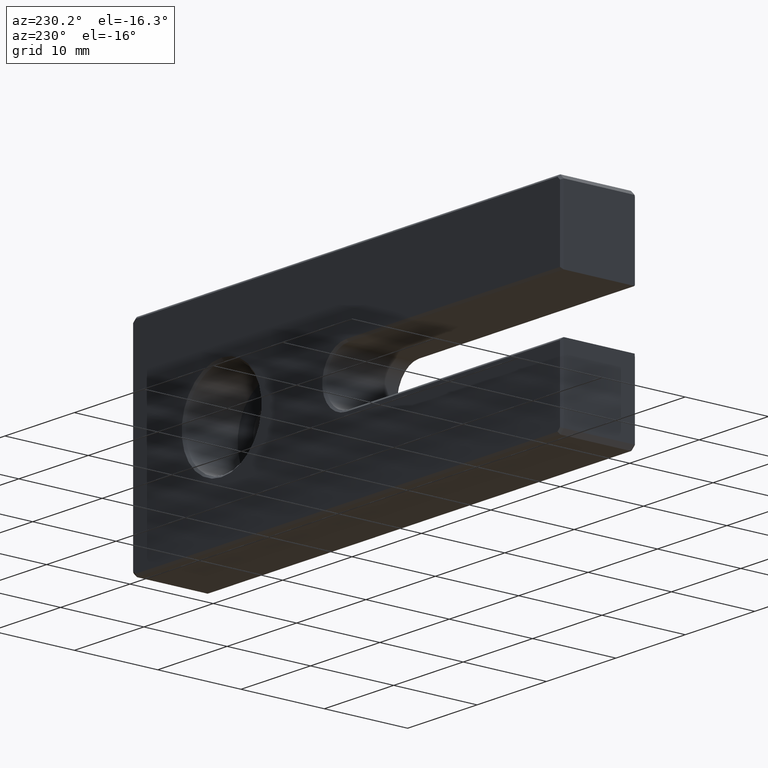
[diagram: clean part render]
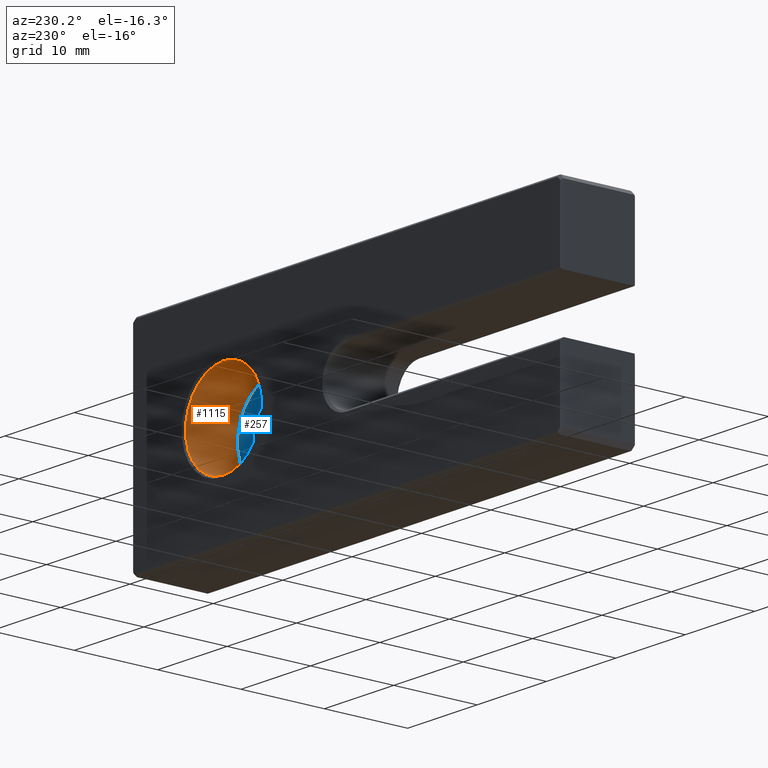
[diagram: same view with the hole feature highlighted: cylindrical wall and planar end face, labeled with their STEP entity ids]
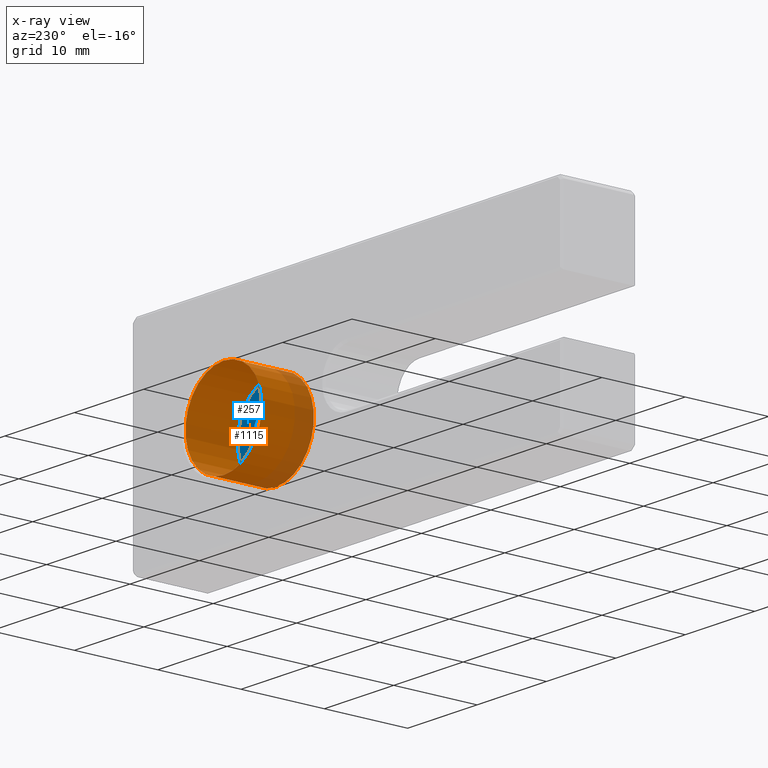
[diagram: x-ray of the same camera — body ghosted, the hole faces saturated]
A machine part, auxiliary view. The highlighted faces form one hole feature of diameter 11 mm: the cylindrical wall (entity #1115, orange) and its adjacent planar end face (entity #257, blue) — they share a circular edge in the B-rep.
The next image is the same camera in x-ray (body ghosted, the hole faces saturated) — the bore reads through the body.
Wall:
#8 = DIRECTION ( 'NONE',  ( 0.000000000000000000, 0.000000000000000000, 1.000000000000000000 ) ) ;
#61 = EDGE_CURVE ( 'NONE', #1163, #1163, #494, .T. ) ;
#69 = DIRECTION ( 'NONE',  ( 0.000000000000000000, 0.000000000000000000, 1.000000000000000000 ) ) ;
#90 = DIRECTION ( 'NONE',  ( -0.000000000000000000, 1.000000000000000000, -0.000000000000000000 ) ) ;
#183 = DIRECTION ( 'NONE',  ( 0.000000000000000000, 1.000000000000000000, 0.000000000000000000 ) ) ;
#278 = FACE_OUTER_BOUND ( 'NONE', #279, .T. ) ;
#279 = EDGE_LOOP ( 'NONE', ( #813 ) ) ;
#291 = CIRCLE ( 'NONE', #949, 5.500000000000011546 ) ;
#349 = VERTEX_POINT ( 'NONE', #985 ) ;
#380 = EDGE_LOOP ( 'NONE', ( #697 ) ) ;
#390 = CARTESIAN_POINT ( 'NONE',  ( 17.99999999999999645, 2.499999999999998668, 0.000000000000000000 ) ) ;
#435 = CARTESIAN_POINT ( 'NONE',  ( 17.99999999999999645, 9.000000000000000000, 0.000000000000000000 ) ) ;
#494 = CIRCLE ( 'NONE', #741, 5.500000000000011546 ) ;
#618 = CYLINDRICAL_SURFACE ( 'NONE', #945, 5.500000000000011546 ) ;
#667 = EDGE_CURVE ( 'NONE', #349, #349, #291, .T. ) ;
#697 = ORIENTED_EDGE ( 'NONE', *, *, #61, .F. ) ;
#709 = DIRECTION ( 'NONE',  ( 0.000000000000000000, 0.000000000000000000, 1.000000000000000000 ) ) ;
#741 = AXIS2_PLACEMENT_3D ( 'NONE', #390, #819, #8 ) ;
#813 = ORIENTED_EDGE ( 'NONE', *, *, #667, .T. ) ;
#815 = CARTESIAN_POINT ( 'NONE',  ( 17.99999999999999645, 8.749999999999996447, 0.000000000000000000 ) ) ;
#819 = DIRECTION ( 'NONE',  ( -0.000000000000000000, 1.000000000000000000, -0.000000000000000000 ) ) ;
#896 = CARTESIAN_POINT ( 'NONE',  ( 17.99999999999999645, 2.499999999999998668, 5.500000000000011546 ) ) ;
#945 = AXIS2_PLACEMENT_3D ( 'NONE', #435, #90, #69 ) ;
#949 = AXIS2_PLACEMENT_3D ( 'NONE', #815, #183, #709 ) ;
#985 = CARTESIAN_POINT ( 'NONE',  ( 17.99999999999999645, 8.749999999999996447, 5.500000000000011546 ) ) ;
#991 = FACE_OUTER_BOUND ( 'NONE', #380, .T. ) ;
#1115 = ADVANCED_FACE ( 'NONE', ( #278, #991 ), #618, .F. ) ;
#1163 = VERTEX_POINT ( 'NONE', #896 ) ;
End face:
#8 = DIRECTION ( 'NONE',  ( 0.000000000000000000, 0.000000000000000000, 1.000000000000000000 ) ) ;
#16 = ORIENTED_EDGE ( 'NONE', *, *, #61, .T. ) ;
#61 = EDGE_CURVE ( 'NONE', #1163, #1163, #494, .T. ) ;
#170 = DIRECTION ( 'NONE',  ( 0.000000000000000000, -0.000000000000000000, -1.000000000000000000 ) ) ;
#178 = DIRECTION ( 'NONE',  ( 0.000000000000000000, -1.000000000000000000, 0.000000000000000000 ) ) ;
#189 = CARTESIAN_POINT ( 'NONE',  ( 17.99999999999999645, 2.499999999999998668, 0.000000000000000000 ) ) ;
#257 = ADVANCED_FACE ( 'NONE', ( #800, #268 ), #982, .F. ) ;
#268 = FACE_OUTER_BOUND ( 'NONE', #789, .T. ) ;
#287 = CARTESIAN_POINT ( 'NONE',  ( 21.25000000000000355, 2.499999999999998668, 0.000000000000000000 ) ) ;
#390 = CARTESIAN_POINT ( 'NONE',  ( 17.99999999999999645, 2.499999999999998668, 0.000000000000000000 ) ) ;
#445 = AXIS2_PLACEMENT_3D ( 'NONE', #189, #551, #975 ) ;
#460 = ORIENTED_EDGE ( 'NONE', *, *, #748, .F. ) ;
#467 = CIRCLE ( 'NONE', #445, 3.250000000000009770 ) ;
#494 = CIRCLE ( 'NONE', #741, 5.500000000000011546 ) ;
#528 = VERTEX_POINT ( 'NONE', #889 ) ;
#551 = DIRECTION ( 'NONE',  ( -0.000000000000000000, 1.000000000000000000, -0.000000000000000000 ) ) ;
#741 = AXIS2_PLACEMENT_3D ( 'NONE', #390, #819, #8 ) ;
#748 = EDGE_CURVE ( 'NONE', #528, #528, #467, .T. ) ;
#789 = EDGE_LOOP ( 'NONE', ( #16 ) ) ;
#800 = FACE_BOUND ( 'NONE', #950, .T. ) ;
#814 = AXIS2_PLACEMENT_3D ( 'NONE', #287, #178, #170 ) ;
#819 = DIRECTION ( 'NONE',  ( -0.000000000000000000, 1.000000000000000000, -0.000000000000000000 ) ) ;
#889 = CARTESIAN_POINT ( 'NONE',  ( 17.99999999999999645, 2.499999999999998668, 3.250000000000009770 ) ) ;
#896 = CARTESIAN_POINT ( 'NONE',  ( 17.99999999999999645, 2.499999999999998668, 5.500000000000011546 ) ) ;
#950 = EDGE_LOOP ( 'NONE', ( #460 ) ) ;
#975 = DIRECTION ( 'NONE',  ( 0.000000000000000000, 0.000000000000000000, 1.000000000000000000 ) ) ;
#982 = PLANE ( 'NONE',  #814 ) ;
#1163 = VERTEX_POINT ( 'NONE', #896 ) ;